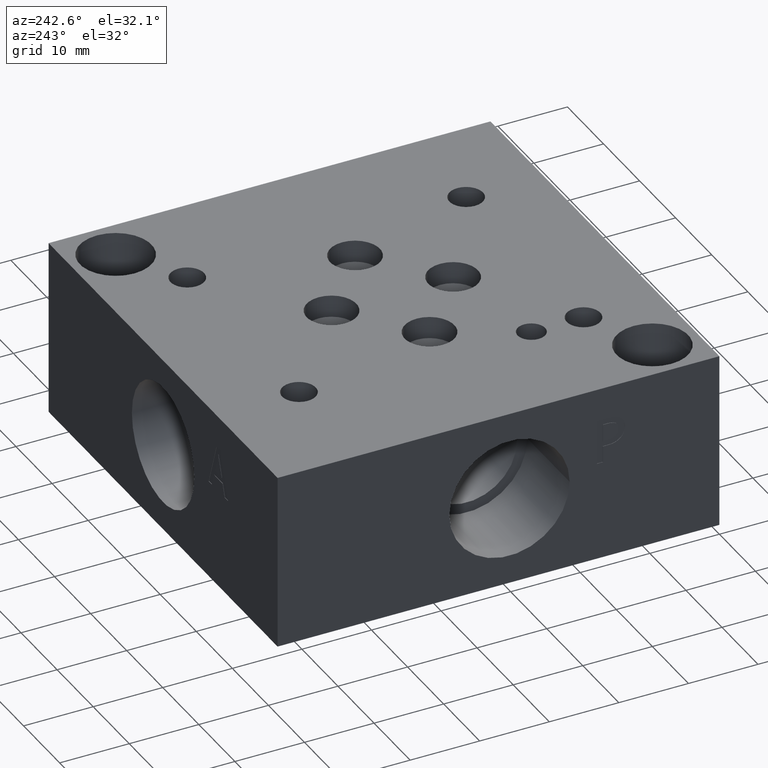
[diagram: clean part render]
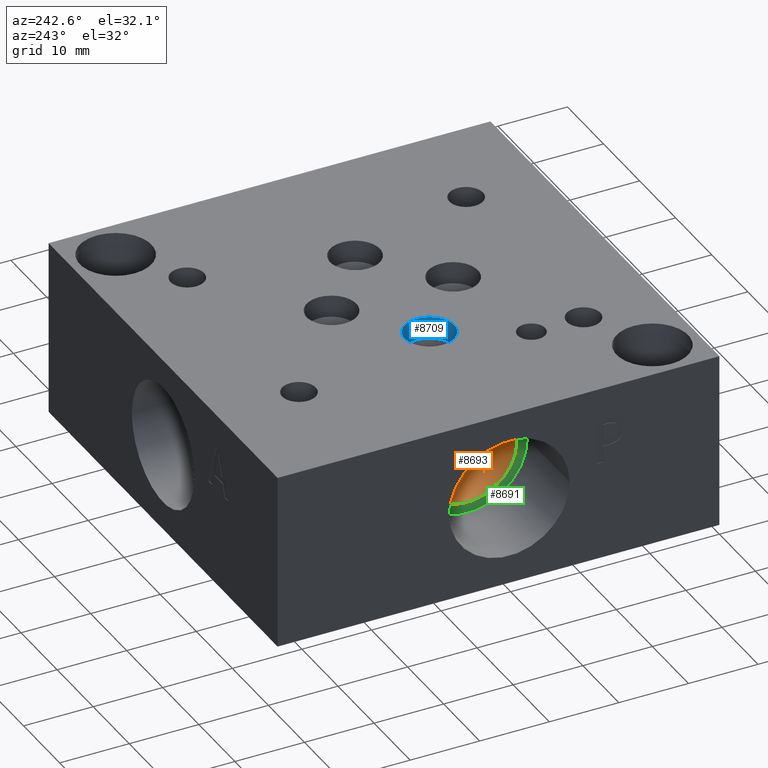
[diagram: same view with three faces highlighted in distinct colors, each labeled with its STEP entity id]
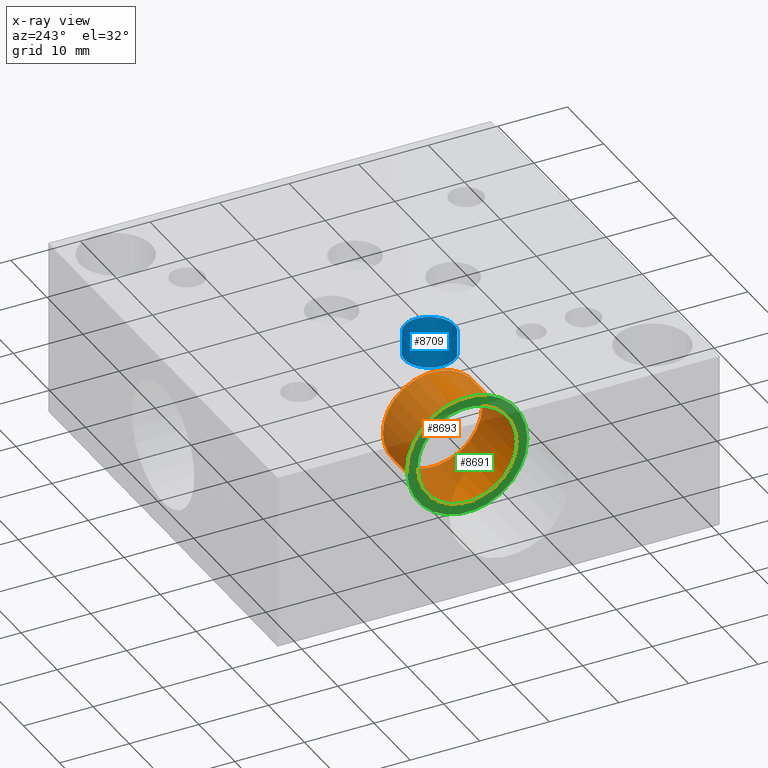
[diagram: x-ray of the same camera — body ghosted, the three highlighted faces saturated]
A machine part, auxiliary view with three faces highlighted in distinct colors.
The next image is the same camera in x-ray (body ghosted, the three faces saturated) — at least one of them is partly hidden behind the body in this view.
Their STEP definitions:

[orange] entity #8693 — the highlighted cylindrical surface (bore or boss wall) has radius 7.1501 mm, axis along (-1, 0, 0).
#32=CYLINDRICAL_SURFACE('',#9036,7.1501);
#70=CIRCLE('',#9029,7.1501);
#71=CIRCLE('',#9030,7.1501);
#74=CIRCLE('',#9034,7.1501);
#866=FACE_OUTER_BOUND('',#1347,.T.);
#1347=EDGE_LOOP('',(#7539,#7540,#7541,#7542,#7543));
#2220=LINE('',#14784,#3060);
#3060=VECTOR('',#10524,7.1501);
#4100=VERTEX_POINT('',#14768);
#4101=VERTEX_POINT('',#14769);
#4105=VERTEX_POINT('',#14779);
#5277=EDGE_CURVE('',#4100,#4101,#70,.T.);
#5279=EDGE_CURVE('',#4101,#4100,#71,.T.);
#5282=EDGE_CURVE('',#4105,#4105,#74,.T.);
#5284=EDGE_CURVE('',#4105,#4101,#2220,.T.);
#7539=ORIENTED_EDGE('',*,*,#5282,.T.);
#7540=ORIENTED_EDGE('',*,*,#5284,.T.);
#7541=ORIENTED_EDGE('',*,*,#5277,.F.);
#7542=ORIENTED_EDGE('',*,*,#5279,.F.);
#7543=ORIENTED_EDGE('',*,*,#5284,.F.);
#8693=ADVANCED_FACE('',(#866),#32,.F.);
#9029=AXIS2_PLACEMENT_3D('',#14770,#10506,#10507);
#9030=AXIS2_PLACEMENT_3D('',#14773,#10509,#10510);
#9034=AXIS2_PLACEMENT_3D('',#14780,#10517,#10518);
#9036=AXIS2_PLACEMENT_3D('',#14783,#10522,#10523);
#10506=DIRECTION('center_axis',(-1.,0.,0.));
#10507=DIRECTION('ref_axis',(0.,1.,0.));
#10509=DIRECTION('center_axis',(-1.,0.,0.));
#10510=DIRECTION('ref_axis',(0.,1.,0.));
#10517=DIRECTION('center_axis',(-1.,0.,0.));
#10518=DIRECTION('ref_axis',(0.,1.,0.));
#10522=DIRECTION('center_axis',(-1.,0.,0.));
#10523=DIRECTION('ref_axis',(0.,1.,0.));
#10524=DIRECTION('',(1.,0.,0.));
#14768=CARTESIAN_POINT('',(21.336,37.3253,12.7));
#14769=CARTESIAN_POINT('',(21.336,23.0251,12.7));
#14770=CARTESIAN_POINT('Origin',(21.336,30.1752,12.7));
#14773=CARTESIAN_POINT('Origin',(21.336,30.1752,12.7));
#14779=CARTESIAN_POINT('',(11.7348,23.0251,12.7));
#14780=CARTESIAN_POINT('Origin',(11.7348,30.1752,12.7));
#14783=CARTESIAN_POINT('Origin',(10.668,30.1752,12.7));
#14784=CARTESIAN_POINT('',(10.668,23.0251,12.7));

[blue] entity #8709 — the highlighted cylindrical surface (bore or boss wall) has radius 3.5687 mm, axis along (0, 0, 1).
#40=CYLINDRICAL_SURFACE('',#9075,3.5687);
#96=CIRCLE('',#9073,3.5687);
#97=CIRCLE('',#9074,3.5687);
#98=CIRCLE('',#9076,3.5687);
#99=CIRCLE('',#9077,3.5687);
#882=FACE_OUTER_BOUND('',#1366,.T.);
#1366=EDGE_LOOP('',(#7612,#7613,#7614,#7615,#7616,#7617));
#2233=LINE('',#14868,#3073);
#3073=VECTOR('',#10619,3.5687);
#4131=VERTEX_POINT('',#14857);
#4132=VERTEX_POINT('',#14858);
#4134=VERTEX_POINT('',#14864);
#4135=VERTEX_POINT('',#14865);
#5317=EDGE_CURVE('',#4131,#4132,#96,.T.);
#5319=EDGE_CURVE('',#4132,#4131,#97,.T.);
#5320=EDGE_CURVE('',#4134,#4135,#98,.T.);
#5321=EDGE_CURVE('',#4135,#4134,#99,.T.);
#5322=EDGE_CURVE('',#4135,#4132,#2233,.T.);
#7612=ORIENTED_EDGE('',*,*,#5320,.F.);
#7613=ORIENTED_EDGE('',*,*,#5321,.F.);
#7614=ORIENTED_EDGE('',*,*,#5322,.T.);
#7615=ORIENTED_EDGE('',*,*,#5317,.F.);
#7616=ORIENTED_EDGE('',*,*,#5319,.F.);
#7617=ORIENTED_EDGE('',*,*,#5322,.F.);
#8709=ADVANCED_FACE('',(#882),#40,.F.);
#9073=AXIS2_PLACEMENT_3D('',#14859,#10608,#10609);
#9074=AXIS2_PLACEMENT_3D('',#14862,#10611,#10612);
#9075=AXIS2_PLACEMENT_3D('',#14863,#10613,#10614);
#9076=AXIS2_PLACEMENT_3D('',#14866,#10615,#10616);
#9077=AXIS2_PLACEMENT_3D('',#14867,#10617,#10618);
#10608=DIRECTION('center_axis',(0.,0.,1.));
#10609=DIRECTION('ref_axis',(1.,0.,0.));
#10611=DIRECTION('center_axis',(0.,0.,1.));
#10612=DIRECTION('ref_axis',(1.,0.,0.));
#10613=DIRECTION('center_axis',(0.,0.,1.));
#10614=DIRECTION('ref_axis',(1.,0.,0.));
#10615=DIRECTION('center_axis',(0.,0.,-1.));
#10616=DIRECTION('ref_axis',(1.,0.,0.));
#10617=DIRECTION('center_axis',(0.,0.,-1.));
#10618=DIRECTION('ref_axis',(1.,0.,0.));
#10619=DIRECTION('',(0.,0.,-1.));
#14857=CARTESIAN_POINT('',(25.7937,30.1498,22.225));
#14858=CARTESIAN_POINT('',(18.6563,30.1498,22.225));
#14859=CARTESIAN_POINT('Origin',(22.225,30.1498,22.225));
#14862=CARTESIAN_POINT('Origin',(22.225,30.1498,22.225));
#14863=CARTESIAN_POINT('Origin',(22.225,30.1498,23.8125));
#14864=CARTESIAN_POINT('',(25.7937,30.1498,25.4));
#14865=CARTESIAN_POINT('',(18.6563,30.1498,25.4));
#14866=CARTESIAN_POINT('Origin',(22.225,30.1498,25.4));
#14867=CARTESIAN_POINT('Origin',(22.225,30.1498,25.4));
#14868=CARTESIAN_POINT('',(18.6563,30.1498,23.8125));

[green] entity #8691 — the highlighted planar face has unit normal (-1, 0, 0).
#72=CIRCLE('',#9032,8.6487);
#73=CIRCLE('',#9033,8.6487);
#74=CIRCLE('',#9034,7.1501);
#178=FACE_BOUND('',#1345,.T.);
#455=PLANE('',#9031);
#864=FACE_OUTER_BOUND('',#1344,.T.);
#1344=EDGE_LOOP('',(#7530,#7531));
#1345=EDGE_LOOP('',(#7532));
#4103=VERTEX_POINT('',#14775);
#4104=VERTEX_POINT('',#14776);
#4105=VERTEX_POINT('',#14779);
#5280=EDGE_CURVE('',#4103,#4104,#72,.T.);
#5281=EDGE_CURVE('',#4104,#4103,#73,.T.);
#5282=EDGE_CURVE('',#4105,#4105,#74,.T.);
#7530=ORIENTED_EDGE('',*,*,#5280,.T.);
#7531=ORIENTED_EDGE('',*,*,#5281,.T.);
#7532=ORIENTED_EDGE('',*,*,#5282,.F.);
#8691=ADVANCED_FACE('',(#864,#178),#455,.T.);
#9031=AXIS2_PLACEMENT_3D('',#14774,#10511,#10512);
#9032=AXIS2_PLACEMENT_3D('',#14777,#10513,#10514);
#9033=AXIS2_PLACEMENT_3D('',#14778,#10515,#10516);
#9034=AXIS2_PLACEMENT_3D('',#14780,#10517,#10518);
#10511=DIRECTION('center_axis',(-1.,0.,0.));
#10512=DIRECTION('ref_axis',(0.,1.,0.));
#10513=DIRECTION('center_axis',(-1.,0.,0.));
#10514=DIRECTION('ref_axis',(0.,1.,0.));
#10515=DIRECTION('center_axis',(-1.,0.,0.));
#10516=DIRECTION('ref_axis',(0.,1.,0.));
#10517=DIRECTION('center_axis',(-1.,0.,0.));
#10518=DIRECTION('ref_axis',(0.,1.,0.));
#14774=CARTESIAN_POINT('Origin',(11.7348,30.1752,12.7));
#14775=CARTESIAN_POINT('',(11.7348,38.8239,12.7));
#14776=CARTESIAN_POINT('',(11.7348,21.5265,12.7));
#14777=CARTESIAN_POINT('Origin',(11.7348,30.1752,12.7));
#14778=CARTESIAN_POINT('Origin',(11.7348,30.1752,12.7));
#14779=CARTESIAN_POINT('',(11.7348,23.0251,12.7));
#14780=CARTESIAN_POINT('Origin',(11.7348,30.1752,12.7));